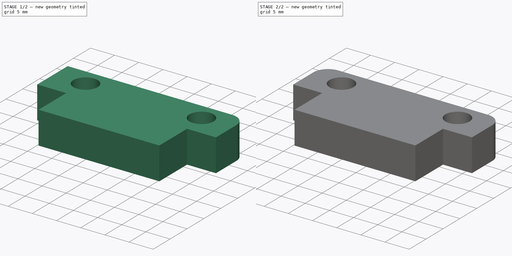
[diagram: build sequence overview — one tinted view per stage of 2, left to right]
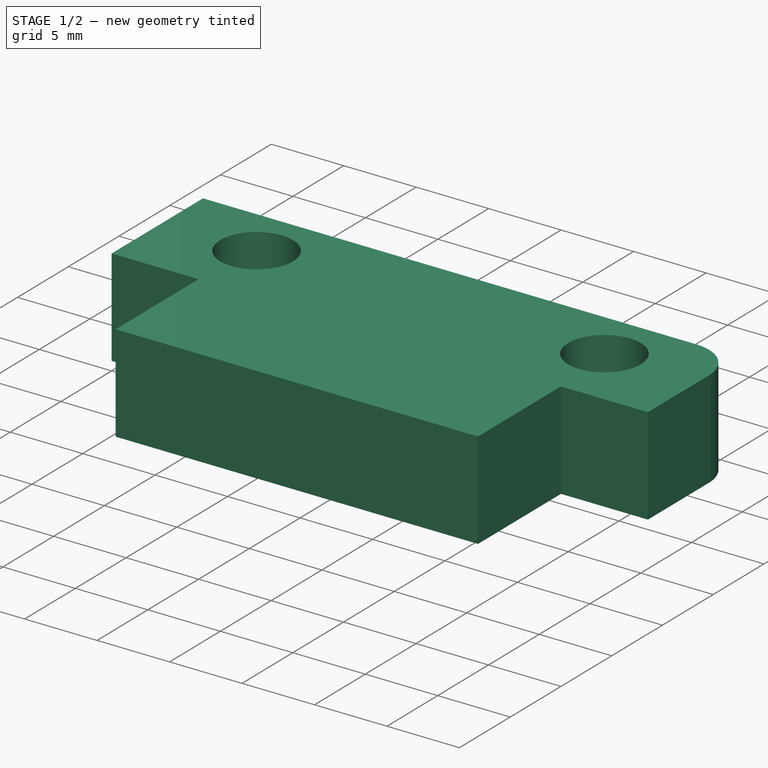
[diagram: stage 1 of 2 — iso view after this stage's code; geometry added in this stage tinted green]
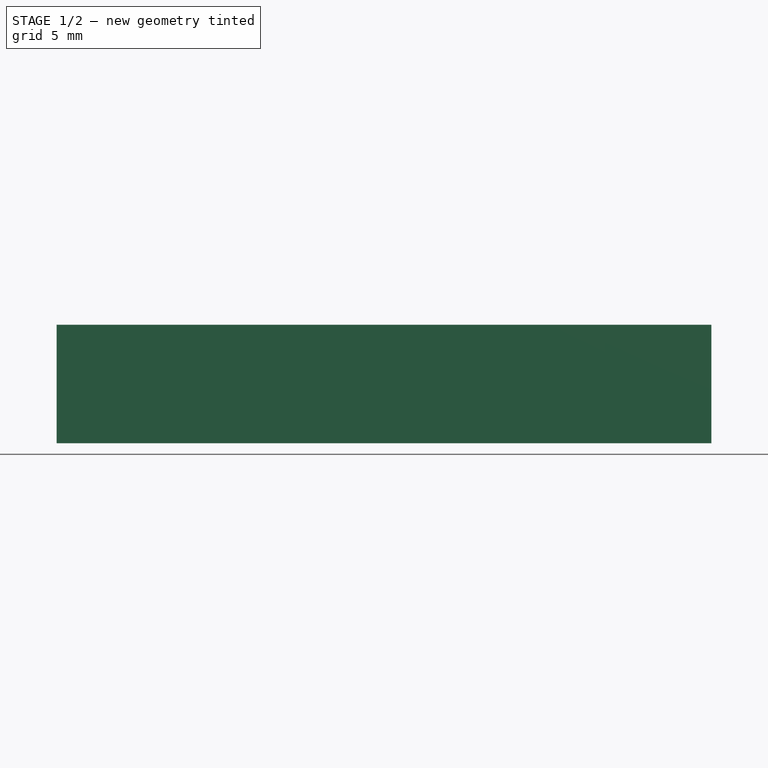
[diagram: stage 1 of 2 — front view after this stage's code; geometry added in this stage tinted green]
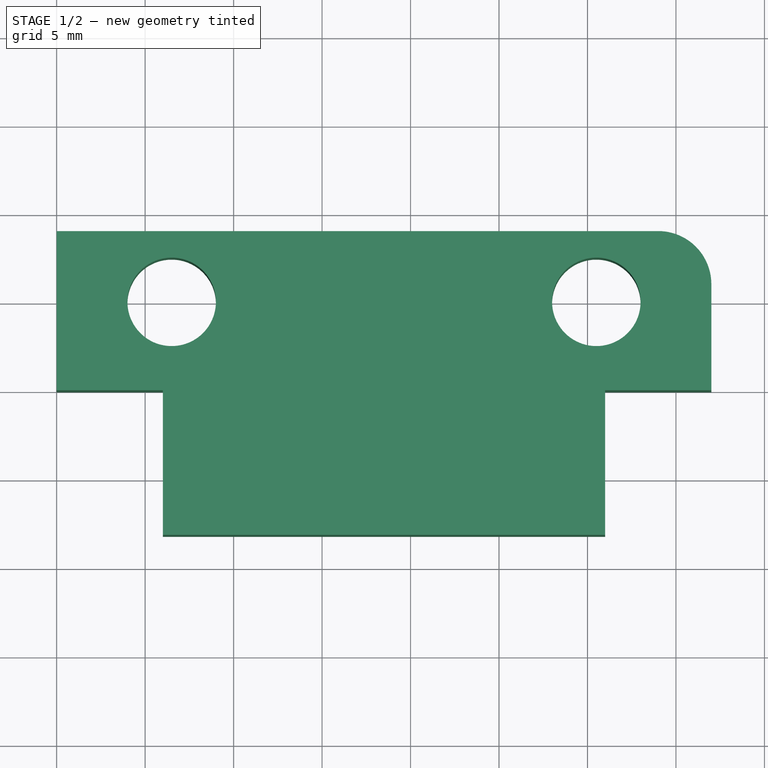
[diagram: stage 1 of 2 — top view after this stage's code; geometry added in this stage tinted green]
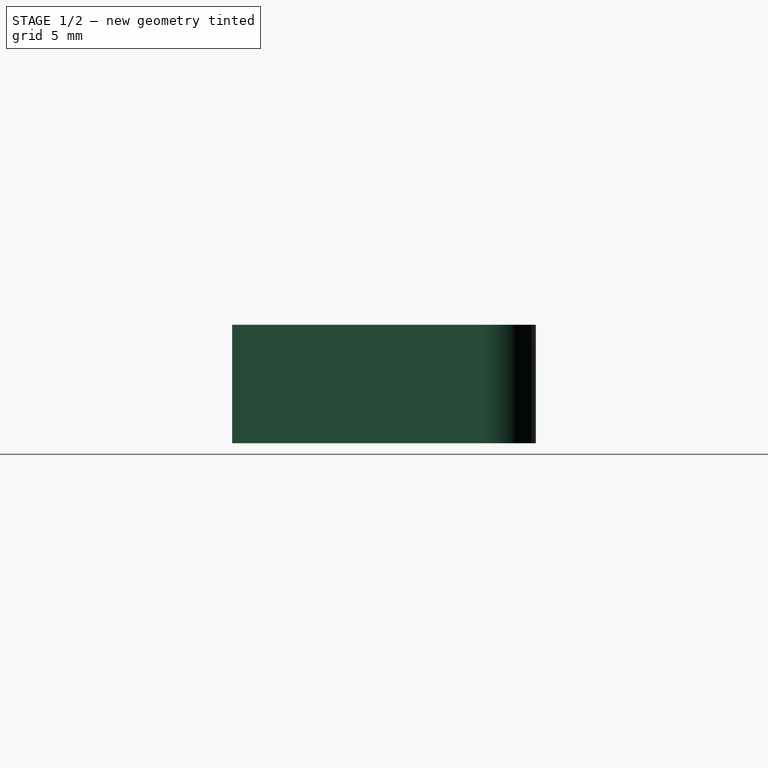
[diagram: stage 1 of 2 — right view after this stage's code; geometry added in this stage tinted green]
FCSTD DOCUMENT  (FreeCAD 0.18R16093 (Git))
Label: sled_tab
License: All rights reserved
LicenseURL: http://en.wikipedia.org/wiki/All_rights_reserved
objects: PartDesign::Fillet×2, Sketcher::SketchObject×1, PartDesign::Pad×1, PartDesign::Body×1
note: 6 computed .brp shape members not serialized (recipe doc carries the construction recipe); baked Part::Feature solids carry a one-line shape summary decoded from their .brp

FEATURE [Sketcher::SketchObject] Sketch
  MapMode = 5
  Support = -> [XY_Plane]
  sketch-geometry (11):
    g0: LineSegment StartX=0 StartY=0 StartZ=0 EndX=6 EndY=0 EndZ=0
    g1: LineSegment StartX=6 StartY=0 StartZ=0 EndX=6 EndY=-8.17137 EndZ=0
    g2: LineSegment StartX=6 StartY=-8.17137 StartZ=0 EndX=31 EndY=-8.17137 EndZ=0
    g3: LineSegment StartX=31 StartY=-8.17137 StartZ=0 EndX=31 EndY=0 EndZ=0
    g4: LineSegment StartX=37 StartY=0 StartZ=0 EndX=37 EndY=9 EndZ=0
    g5: LineSegment StartX=37 StartY=9 StartZ=0 EndX=0 EndY=9 EndZ=0
    g6: LineSegment StartX=0 StartY=0 StartZ=0 EndX=0 EndY=9 EndZ=0
    g7: LineSegment StartX=31 StartY=0 StartZ=0 EndX=37 EndY=0 EndZ=0
    g8: Circle CenterX=6.5 CenterY=5 CenterZ=0 NormalX=0 NormalY=0 NormalZ=1 AngleXU=0 Radius=2.5
    g9: Circle CenterX=30.5 CenterY=5 CenterZ=0 NormalX=0 NormalY=0 NormalZ=1 AngleXU=0 Radius=2.5
    g10: LineSegment [constr] StartX=18.5 StartY=12.8579 StartZ=0 EndX=18.5 EndY=-15.0785 EndZ=0
  constraints (29):
    c: Coincident(g0,g-1)
    c: Coincident(g1,g0)
    c: Vertical(g1)
    c: Horizontal(g2)
    c: Coincident(g3,g2)
    c: Vertical(g3)
    c: Coincident(g5,g4)
    c: Horizontal(g5)
    c: Coincident(g6,g0)
    c: Coincident(g6,g5)
    c: Vertical(g6)
    c: Coincident(g7,g3)
    c: Coincident(g7,g4)
    c: Vertical(g4)
    c: Horizontal(g7)
    c: Horizontal(g3,g0)
    c: Coincident(g1,g2)
    c: DistanceX(g2,g2) = 25
    c: DistanceX(g0,g0) = 6
    c: DistanceY(g6,g6) = 9
    c: Equal(g0,g7)
    c: Equal(g8,g9)
    c: Radius(g8) = 2.5
    c: DistanceY(g8,g5) = 4
    c: DistanceX(g8,g9) = 24
    c: Horizontal(g9,g8)
    c: Vertical(g10)
    c: DistanceX(g5,g10) = 18.5
    c: DistanceX(g8,g10) = 12
FEATURE [PartDesign::Pad] Pad
  Length = 6.7
  Length2 = 100
  Profile = -> Sketch
  Type = 0
FEATURE [PartDesign::Fillet] Fillet
  Base = -> Pad [Edge17]
  BaseFeature = -> Pad
  Radius = 3
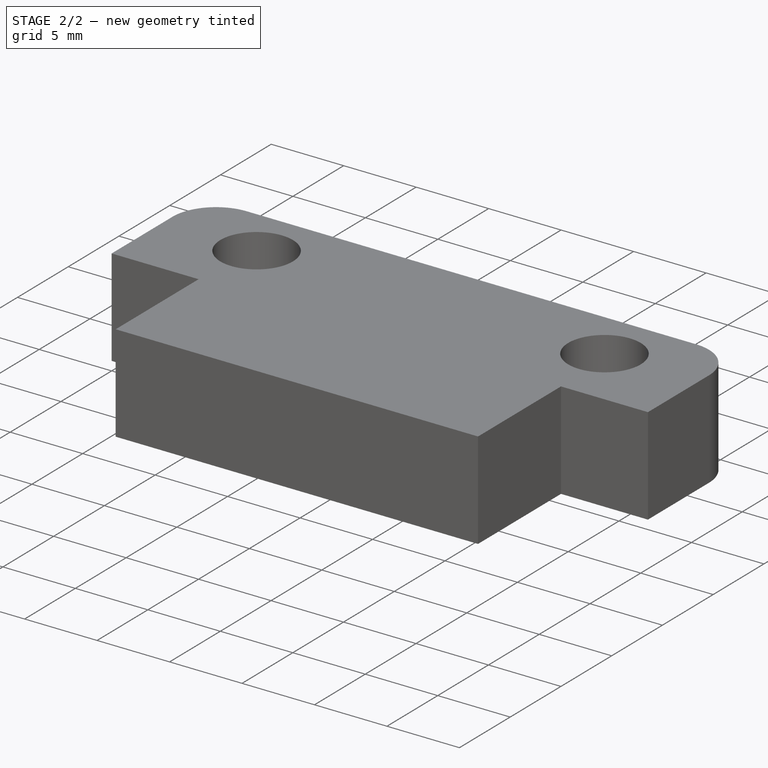
[diagram: stage 2 of 2 — iso view after this stage's code; geometry added in this stage tinted green]
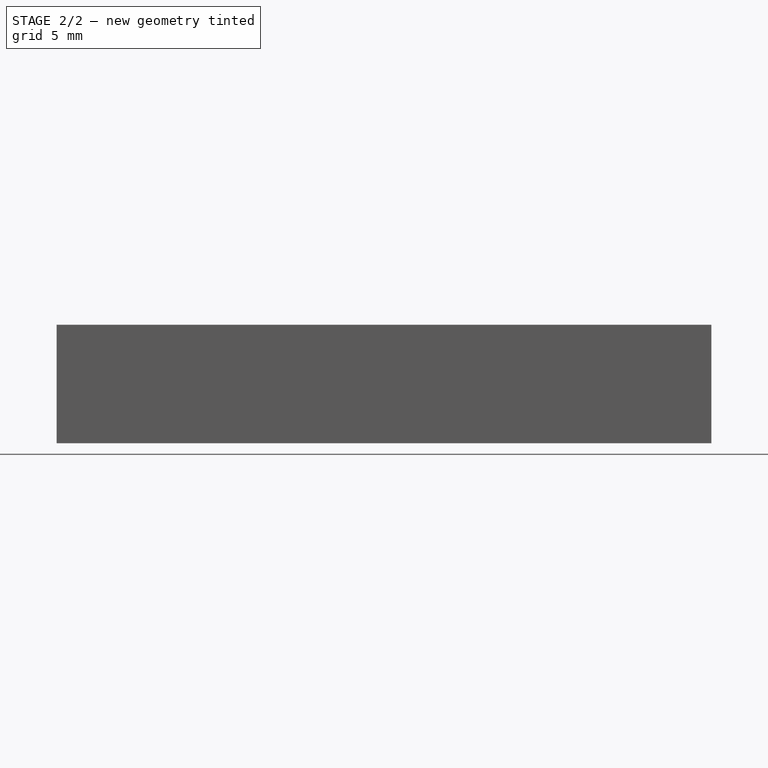
[diagram: stage 2 of 2 — front view after this stage's code; geometry added in this stage tinted green]
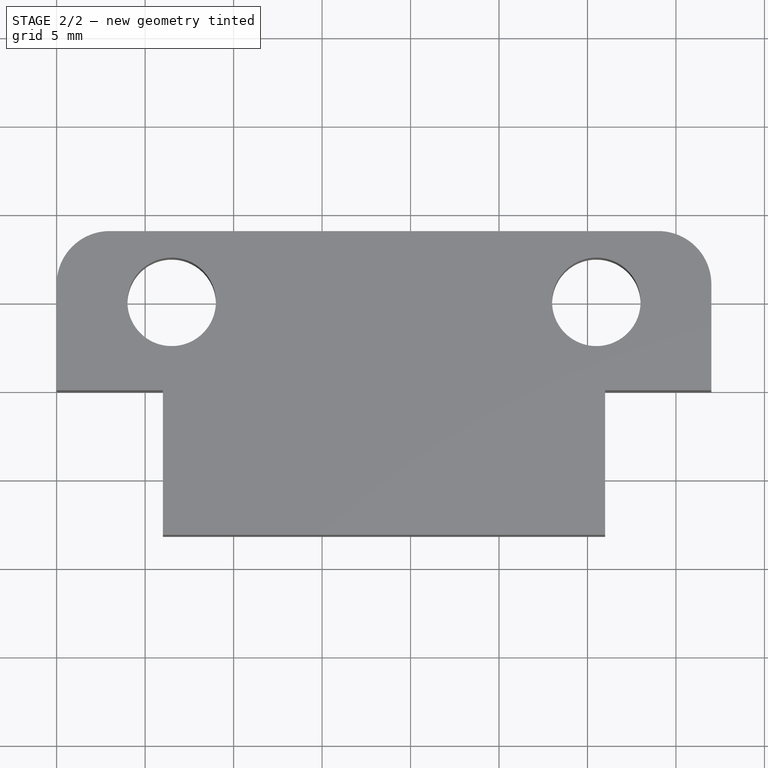
[diagram: stage 2 of 2 — top view after this stage's code; geometry added in this stage tinted green]
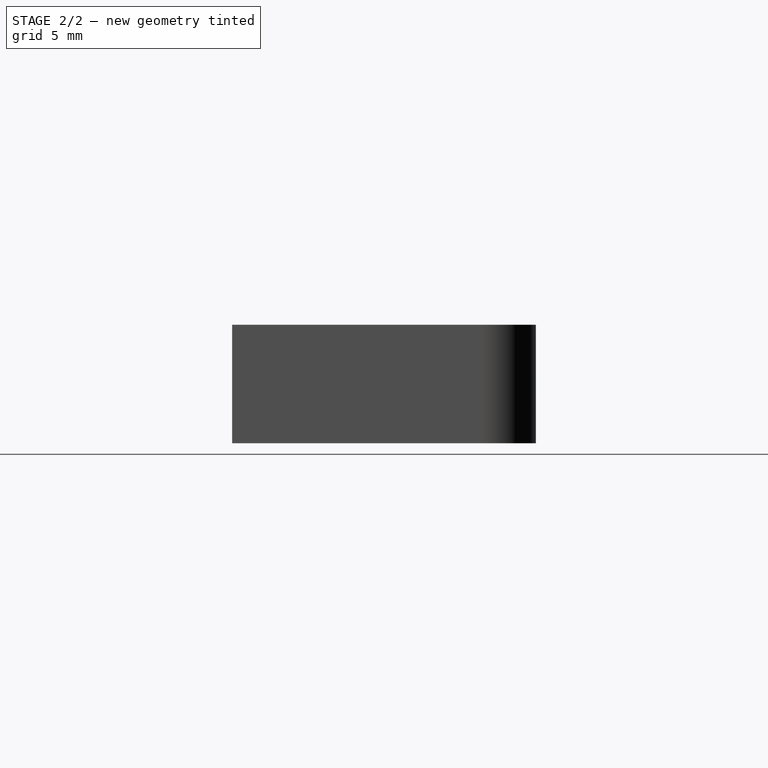
[diagram: stage 2 of 2 — right view after this stage's code; geometry added in this stage tinted green]
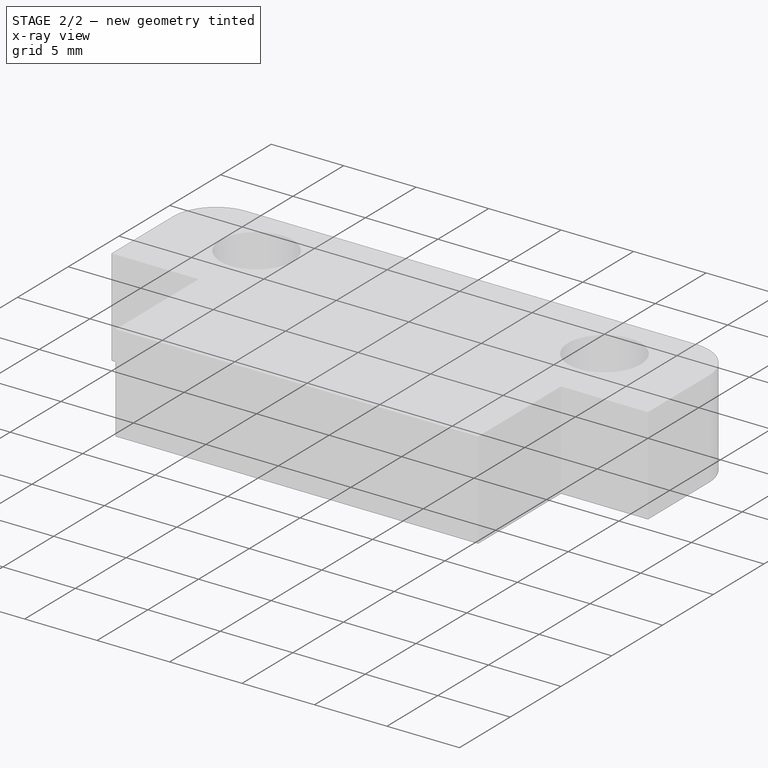
[diagram: stage 2 of 2 — x-ray composite at the iso view; earlier geometry ghosted, this stage's added geometry solid]
FEATURE [PartDesign::Fillet] Fillet001
  Base = -> Fillet [Edge27]
  BaseFeature = -> Fillet
  Radius = 3
FEATURE [PartDesign::Body] Body
  Group = -> [Sketch,Pad,Fillet,Fillet001]
  Origin = -> Origin
  Tip = -> Fillet001
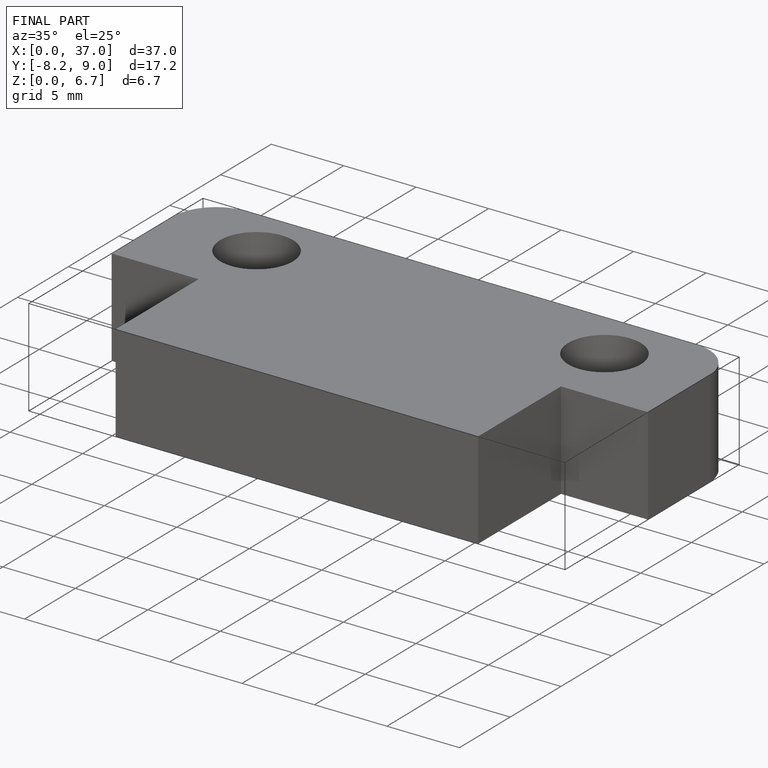
[diagram: finished part — iso view with bounding-box wireframe]
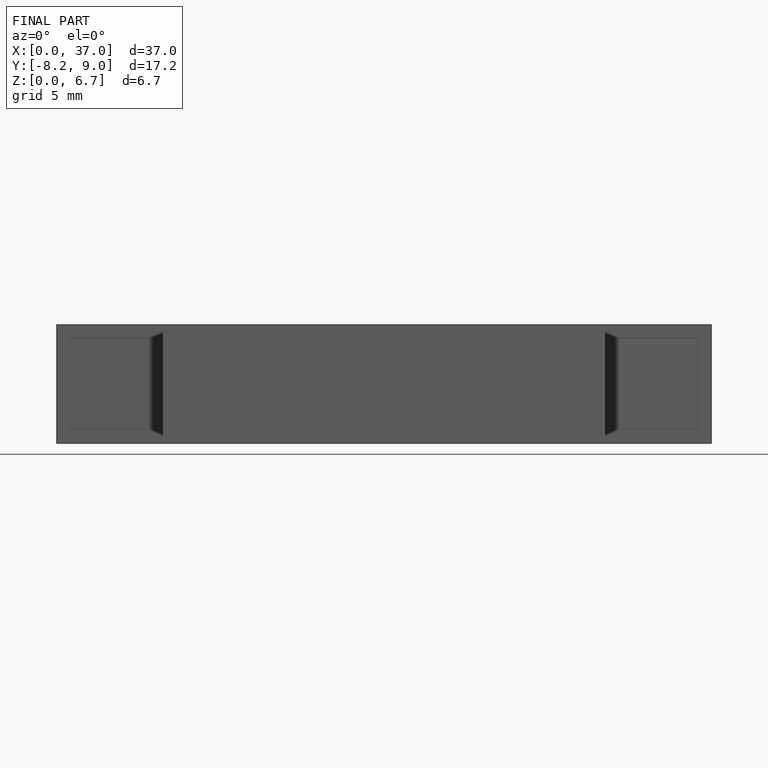
[diagram: finished part — front view with bounding-box wireframe]
